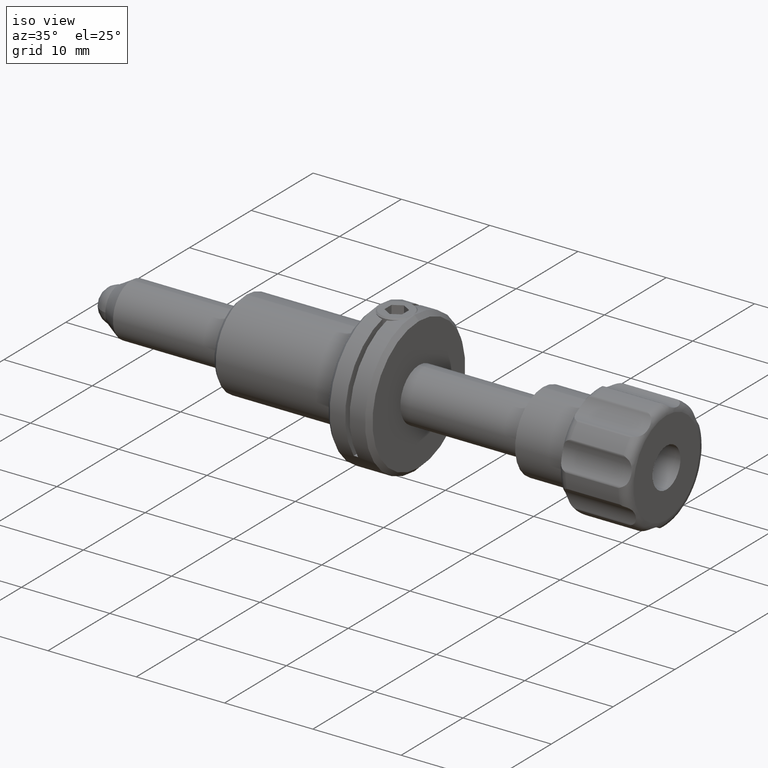
[diagram: clean part render]
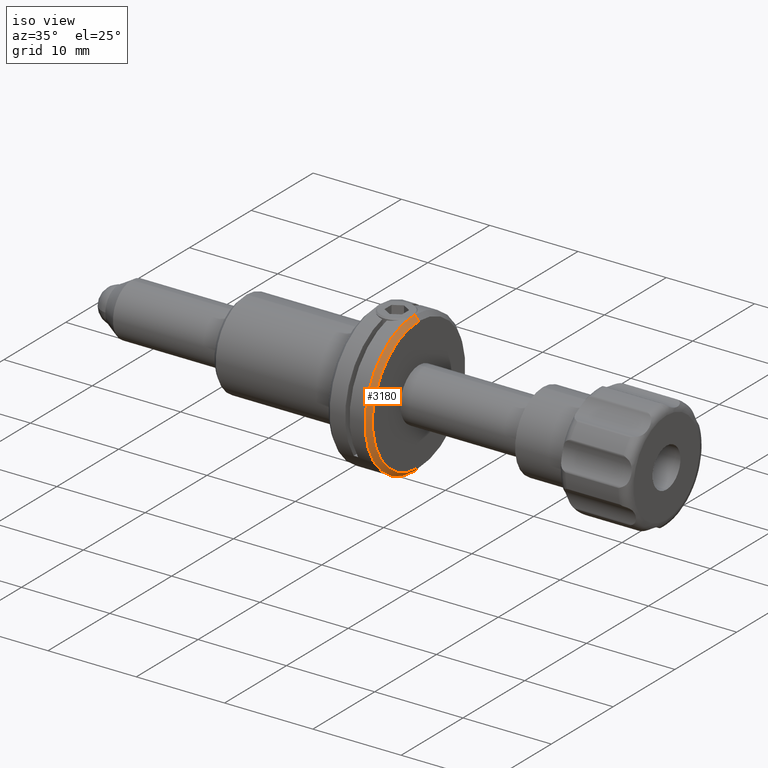
[diagram: same view with one face highlighted and labeled with its STEP entity id]
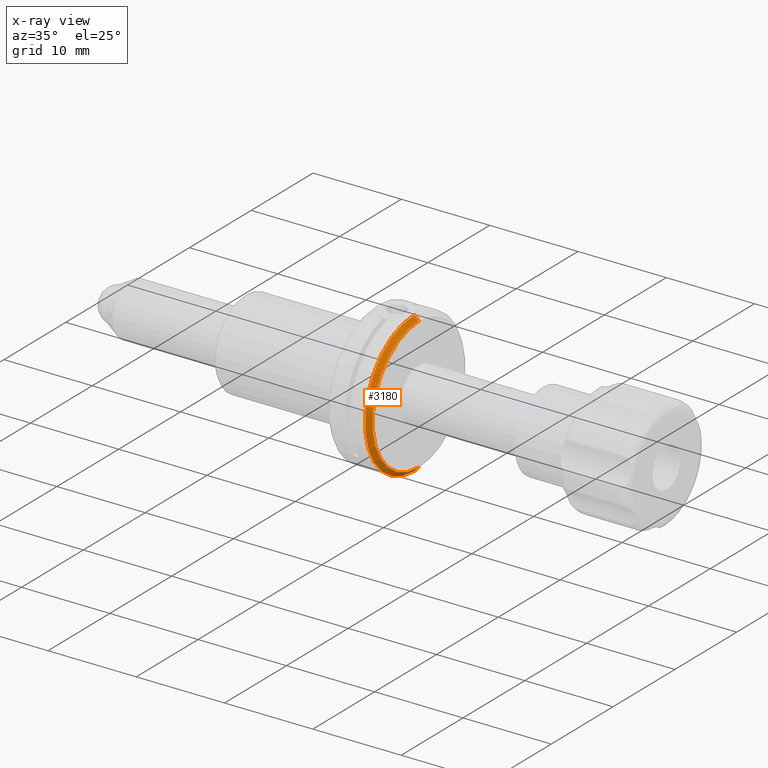
[diagram: x-ray of the same camera — body ghosted, the highlighted face saturated]
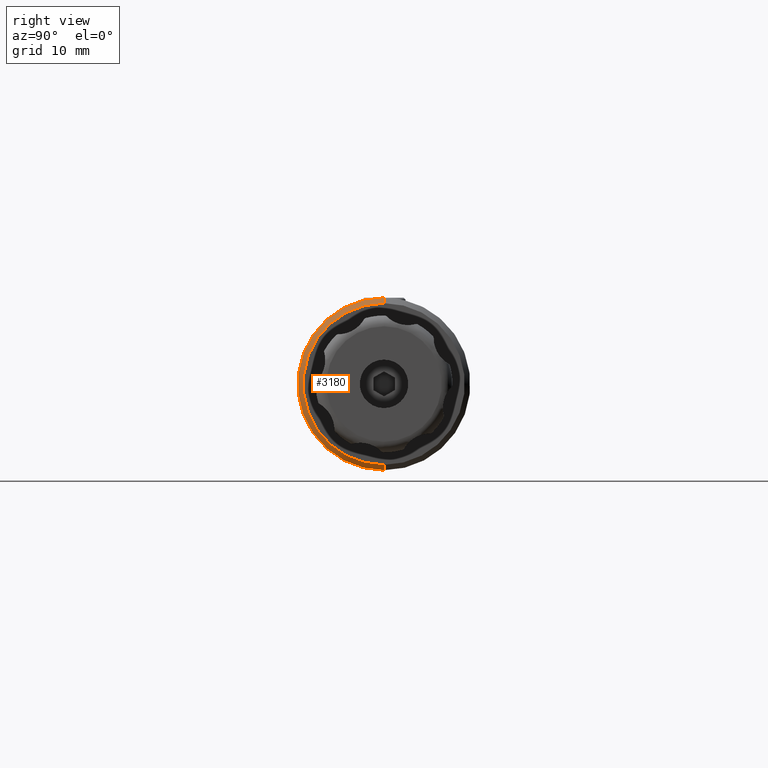
[diagram: same view with one face highlighted and labeled with its STEP entity id]
A machine part, iso view. The second image highlights one B-rep face of the part: STEP entity #3180.
The next image is the same camera in x-ray: the body ghosted, the highlighted face saturated — about 0% of this face is hidden behind the body in this view.
A second angle (right view) of the same face is appended — the face is thin or edge-on in the first view.
In plain terms, the highlighted conical surface has half-angle 45 deg.
Its self-contained STEP definition (entity closure, byte-faithful):
#89 = VERTEX_POINT ( 'NONE', #2521 ) ;
#215 = DIRECTION ( 'NONE',  ( -1.000000000000000000, 0.000000000000000000, 0.000000000000000000 ) ) ;
#255 = CARTESIAN_POINT ( 'NONE',  ( 6.500000000000002665, 0.000000000000000000, 0.000000000000000000 ) ) ;
#287 = CONICAL_SURFACE ( 'NONE', #1965, 8.000000000000000000, 0.7853981633974533860 ) ;
#418 = CIRCLE ( 'NONE', #2555, 7.499999999999994671 ) ;
#764 = CARTESIAN_POINT ( 'NONE',  ( 6.500000000000002665, 0.000000000000000000, -8.000000000000000000 ) ) ;
#840 = LINE ( 'NONE', #1984, #1317 ) ;
#1146 = CARTESIAN_POINT ( 'NONE',  ( 7.000000000000002665, -9.491012693391983843E-16, 7.499999999999994671 ) ) ;
#1238 = VERTEX_POINT ( 'NONE', #2896 ) ;
#1275 = EDGE_CURVE ( 'NONE', #2710, #2652, #840, .T. ) ;
#1317 = VECTOR ( 'NONE', #3538, 1000.000000000000000 ) ;
#1329 = FACE_OUTER_BOUND ( 'NONE', #2772, .T. ) ;
#1407 = DIRECTION ( 'NONE',  ( -0.7071067811865439090, 0.000000000000000000, -0.7071067811865512365 ) ) ;
#1534 = AXIS2_PLACEMENT_3D ( 'NONE', #255, #2646, #3264 ) ;
#1677 = DIRECTION ( 'NONE',  ( 0.000000000000000000, 0.000000000000000000, -1.000000000000000000 ) ) ;
#1758 = EDGE_CURVE ( 'NONE', #2710, #1238, #418, .T. ) ;
#1965 = AXIS2_PLACEMENT_3D ( 'NONE', #2898, #215, #1677 ) ;
#1984 = CARTESIAN_POINT ( 'NONE',  ( 6.500000000000002665, -9.797174393178825657E-16, 8.000000000000000000 ) ) ;
#2217 = DIRECTION ( 'NONE',  ( 1.000000000000000000, -0.000000000000000000, -0.000000000000000000 ) ) ;
#2248 = LINE ( 'NONE', #764, #2478 ) ;
#2272 = CARTESIAN_POINT ( 'NONE',  ( 7.000000000000002665, 0.000000000000000000, 0.000000000000000000 ) ) ;
#2366 = ORIENTED_EDGE ( 'NONE', *, *, #1275, .T. ) ;
#2478 = VECTOR ( 'NONE', #1407, 1000.000000000000000 ) ;
#2521 = CARTESIAN_POINT ( 'NONE',  ( 6.500000000000002665, 0.000000000000000000, -8.000000000000000000 ) ) ;
#2549 = ORIENTED_EDGE ( 'NONE', *, *, #3263, .F. ) ;
#2555 = AXIS2_PLACEMENT_3D ( 'NONE', #2272, #2217, #3694 ) ;
#2646 = DIRECTION ( 'NONE',  ( -1.000000000000000000, 0.000000000000000000, 0.000000000000000000 ) ) ;
#2652 = VERTEX_POINT ( 'NONE', #3235 ) ;
#2710 = VERTEX_POINT ( 'NONE', #1146 ) ;
#2772 = EDGE_LOOP ( 'NONE', ( #3201, #2366, #2549, #3632 ) ) ;
#2896 = CARTESIAN_POINT ( 'NONE',  ( 7.000000000000002665, 0.000000000000000000, -7.499999999999994671 ) ) ;
#2898 = CARTESIAN_POINT ( 'NONE',  ( 6.500000000000002665, 0.000000000000000000, 0.000000000000000000 ) ) ;
#3157 = CIRCLE ( 'NONE', #1534, 8.000000000000000000 ) ;
#3180 = ADVANCED_FACE ( 'NONE', ( #1329 ), #287, .T. ) ;
#3184 = EDGE_CURVE ( 'NONE', #1238, #89, #2248, .T. ) ;
#3201 = ORIENTED_EDGE ( 'NONE', *, *, #1758, .F. ) ;
#3235 = CARTESIAN_POINT ( 'NONE',  ( 6.500000000000002665, -9.797174393178825657E-16, 8.000000000000000000 ) ) ;
#3263 = EDGE_CURVE ( 'NONE', #89, #2652, #3157, .T. ) ;
#3264 = DIRECTION ( 'NONE',  ( 0.000000000000000000, 0.000000000000000000, -1.000000000000000000 ) ) ;
#3538 = DIRECTION ( 'NONE',  ( -0.7071067811865439090, -8.659560562354978464E-17, 0.7071067811865512365 ) ) ;
#3632 = ORIENTED_EDGE ( 'NONE', *, *, #3184, .F. ) ;
#3694 = DIRECTION ( 'NONE',  ( 0.000000000000000000, 0.000000000000000000, -1.000000000000000000 ) ) ;